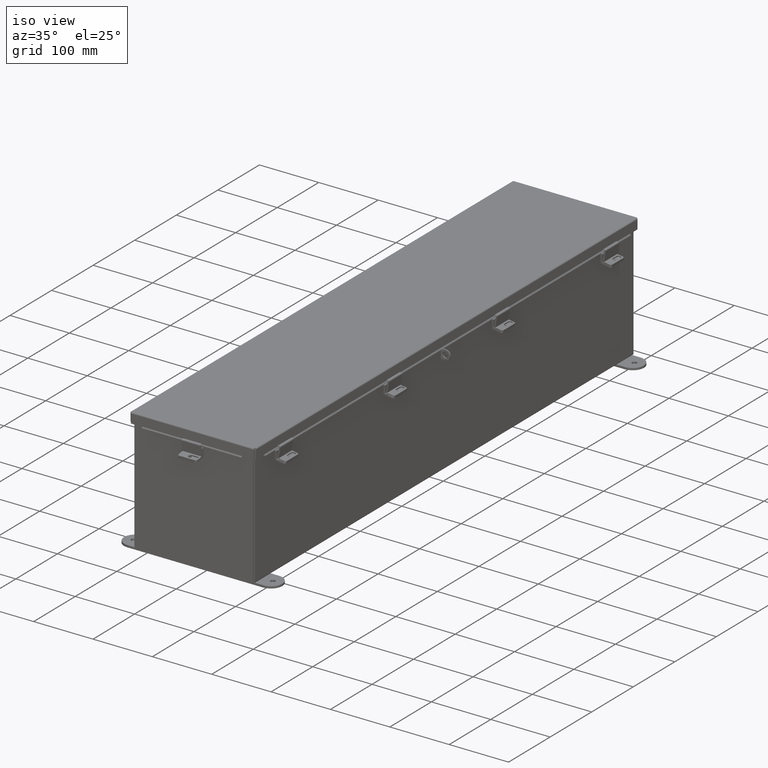
[diagram: clean part render]
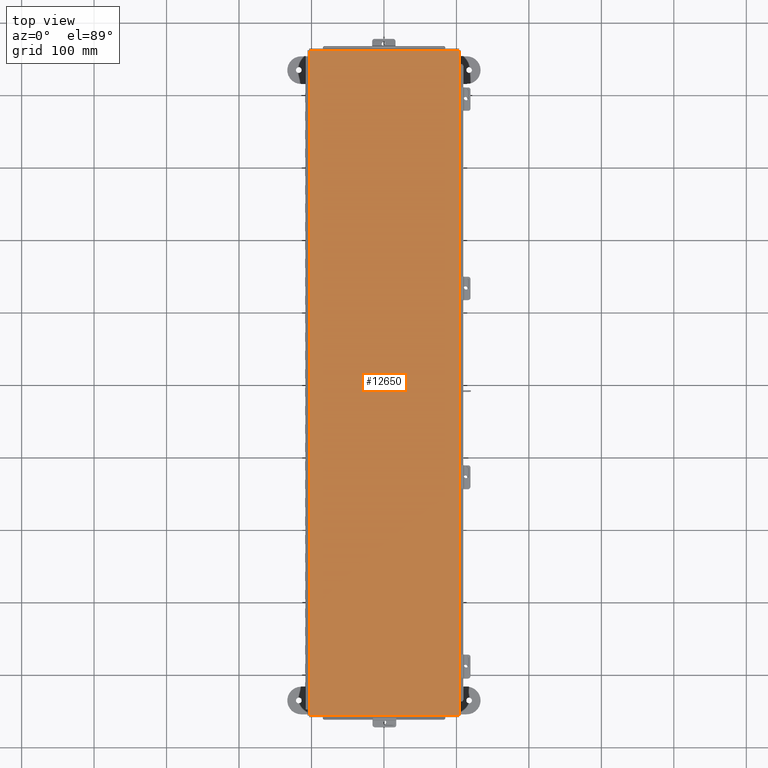
[diagram: tour spotlight — one face highlighted and labeled with its STEP entity id]
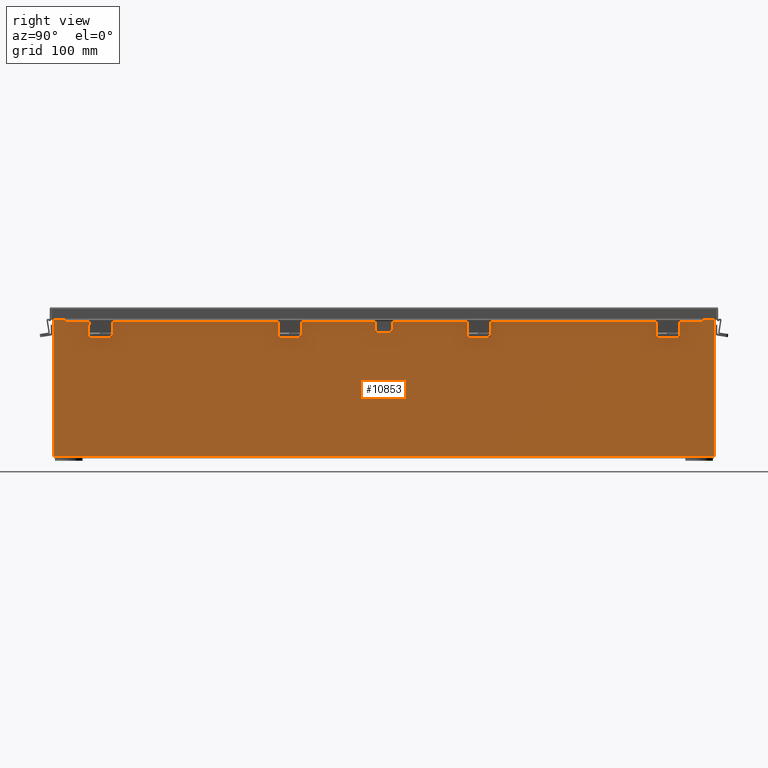
[diagram: tour spotlight — one face highlighted and labeled with its STEP entity id]
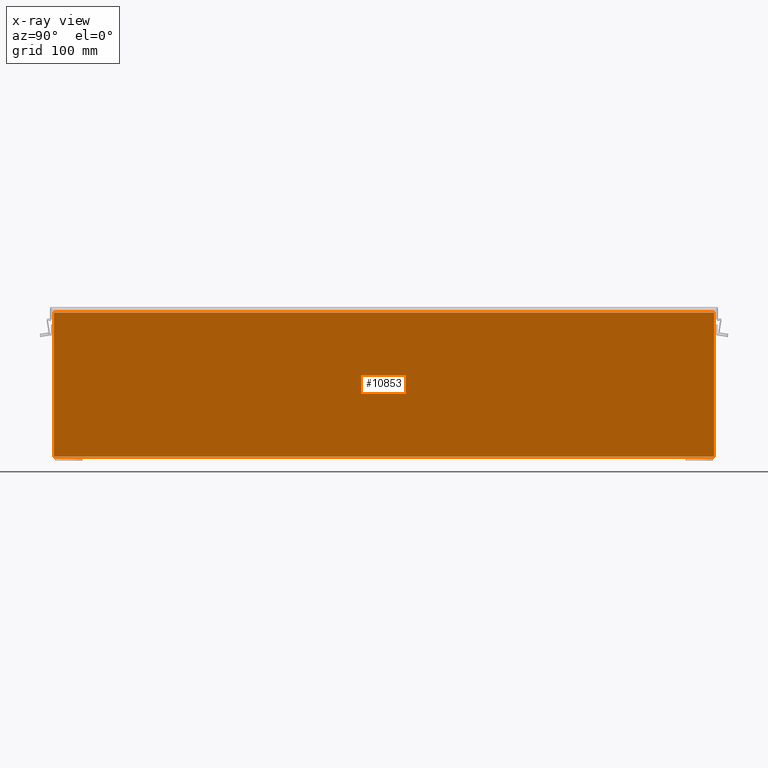
[diagram: x-ray of the same camera — body ghosted, this tour face saturated]
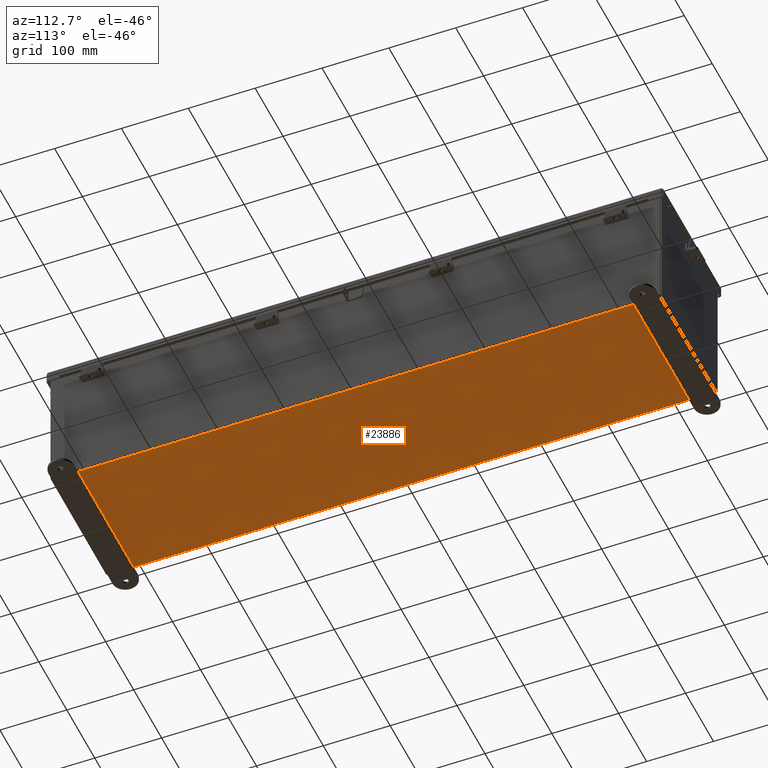
[diagram: tour spotlight — one face highlighted and labeled with its STEP entity id]
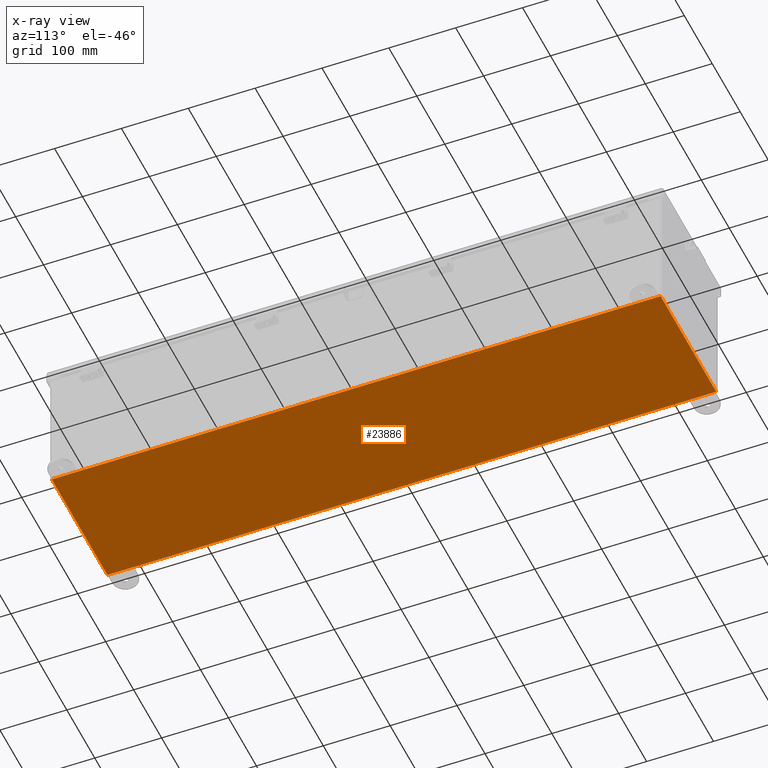
[diagram: x-ray of the same camera — body ghosted, this tour face saturated]
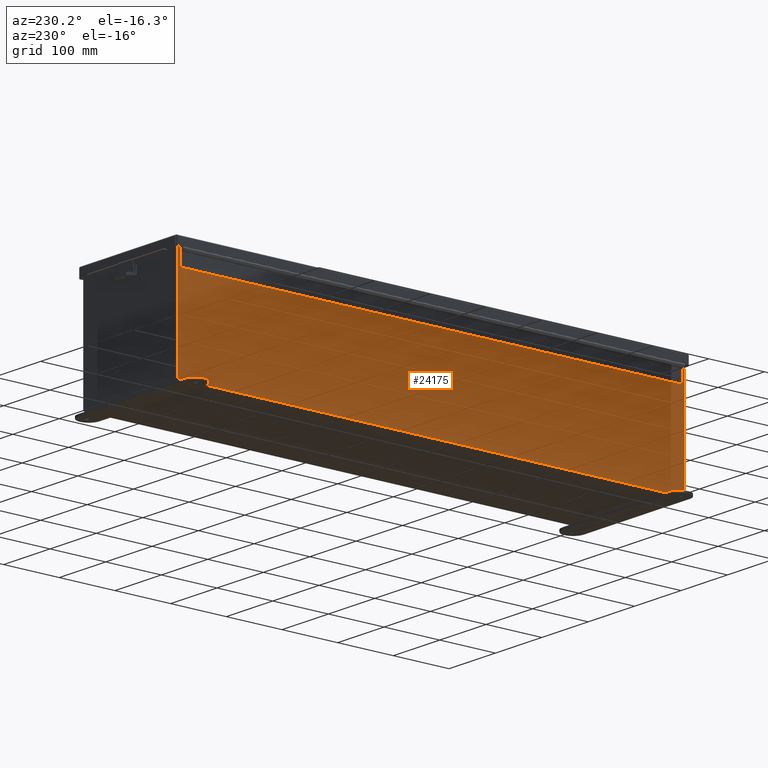
[diagram: tour spotlight — one face highlighted and labeled with its STEP entity id]
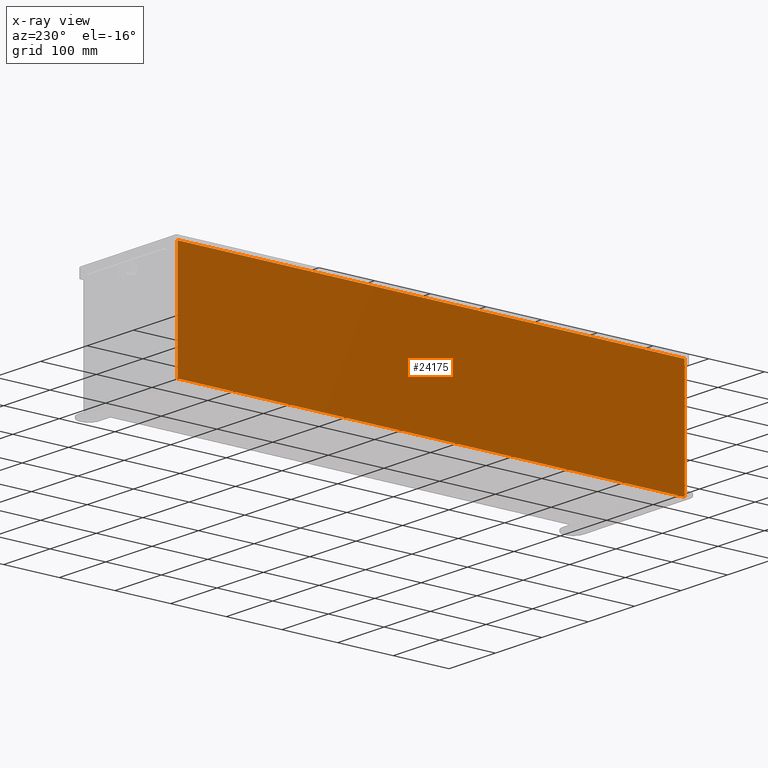
[diagram: x-ray of the same camera — body ghosted, this tour face saturated]
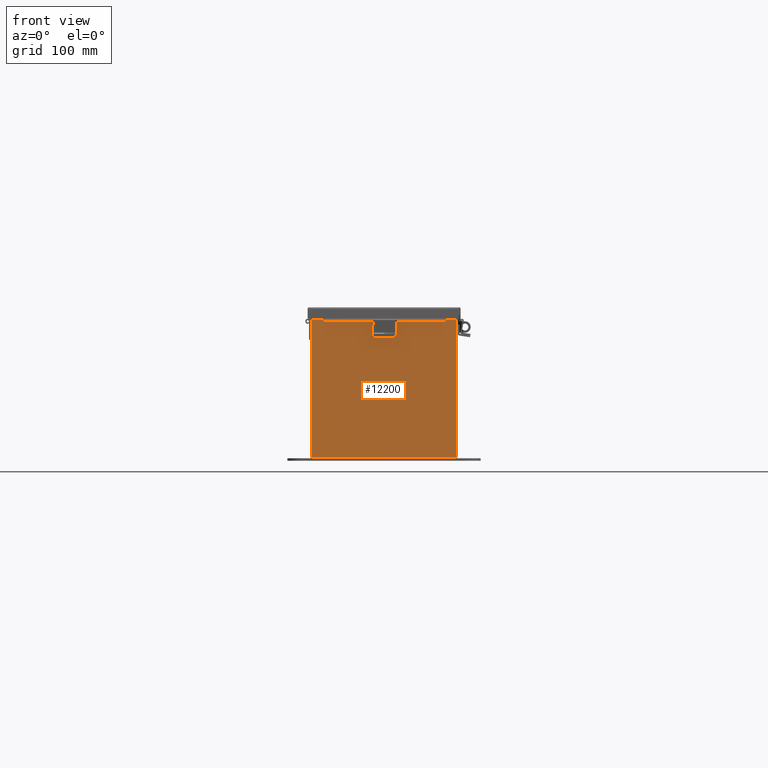
[diagram: tour spotlight — one face highlighted and labeled with its STEP entity id]
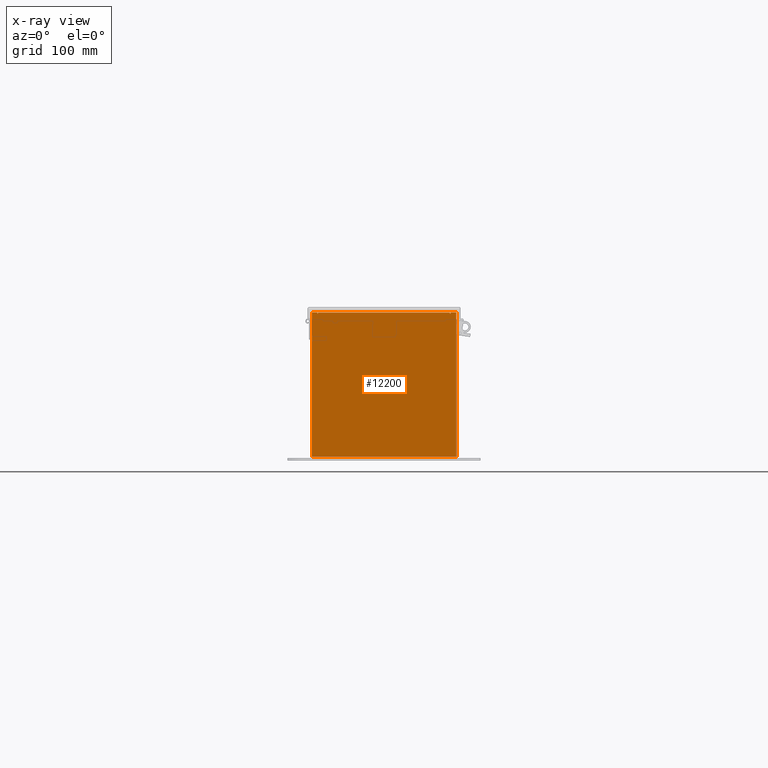
[diagram: x-ray of the same camera — body ghosted, this tour face saturated]
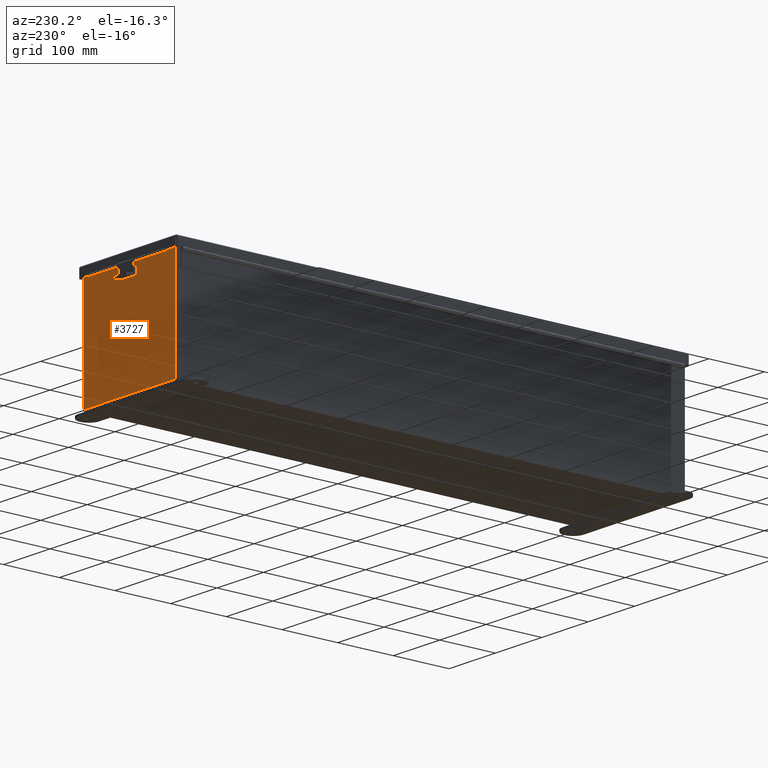
[diagram: tour spotlight — one face highlighted and labeled with its STEP entity id]
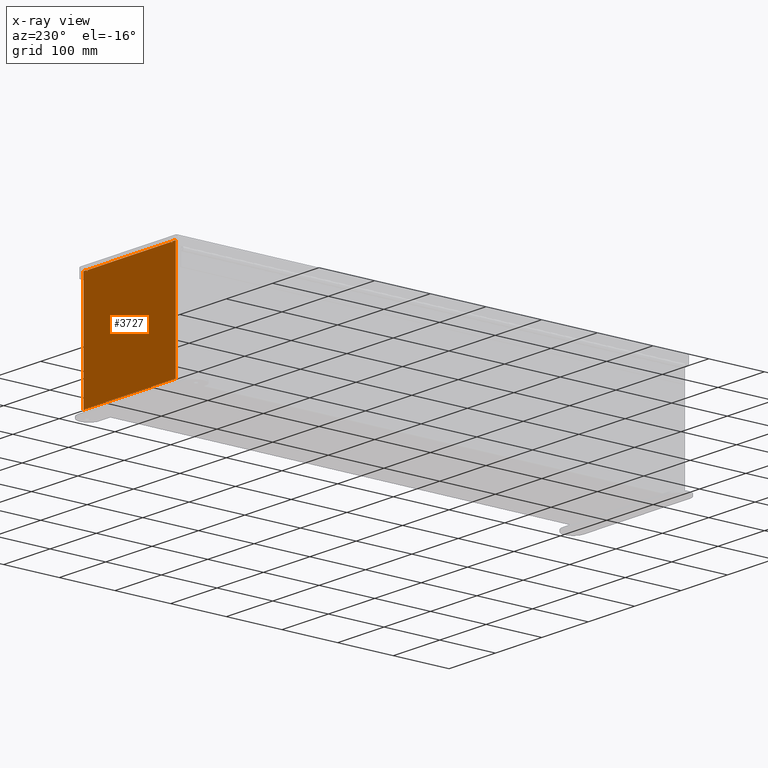
[diagram: x-ray of the same camera — body ghosted, this tour face saturated]
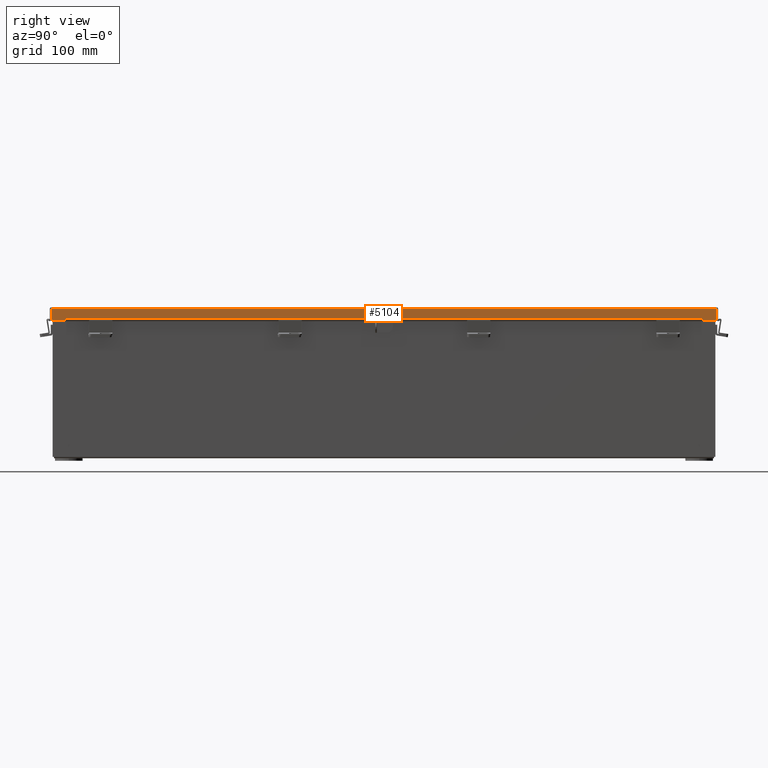
[diagram: tour spotlight — one face highlighted and labeled with its STEP entity id]
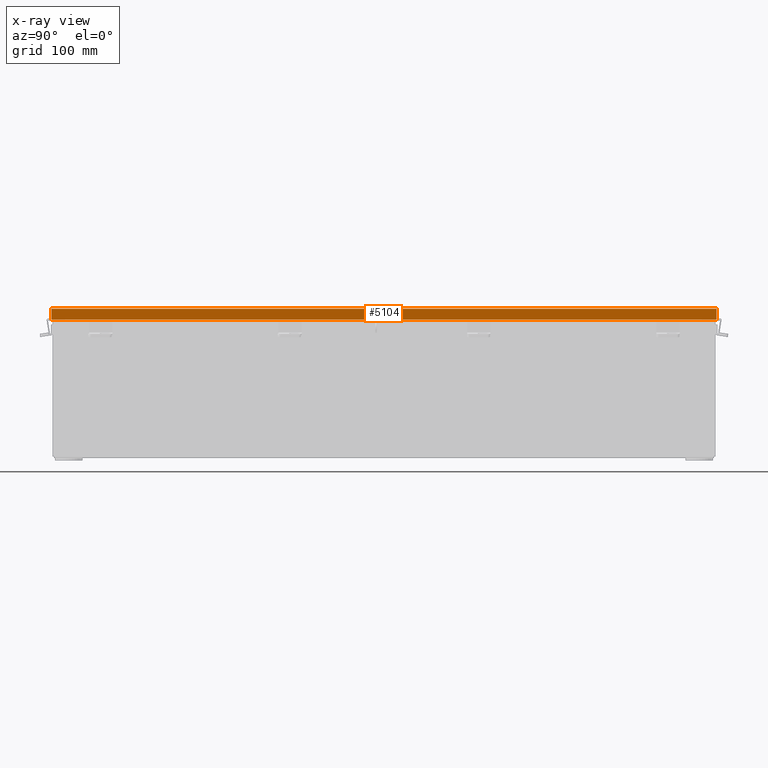
[diagram: x-ray of the same camera — body ghosted, this tour face saturated]
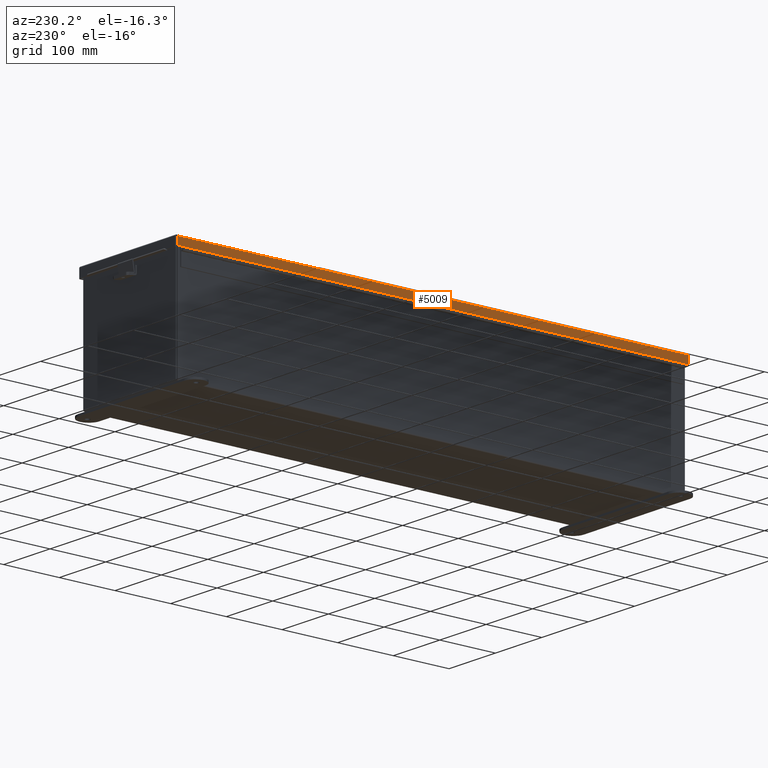
[diagram: tour spotlight — one face highlighted and labeled with its STEP entity id]
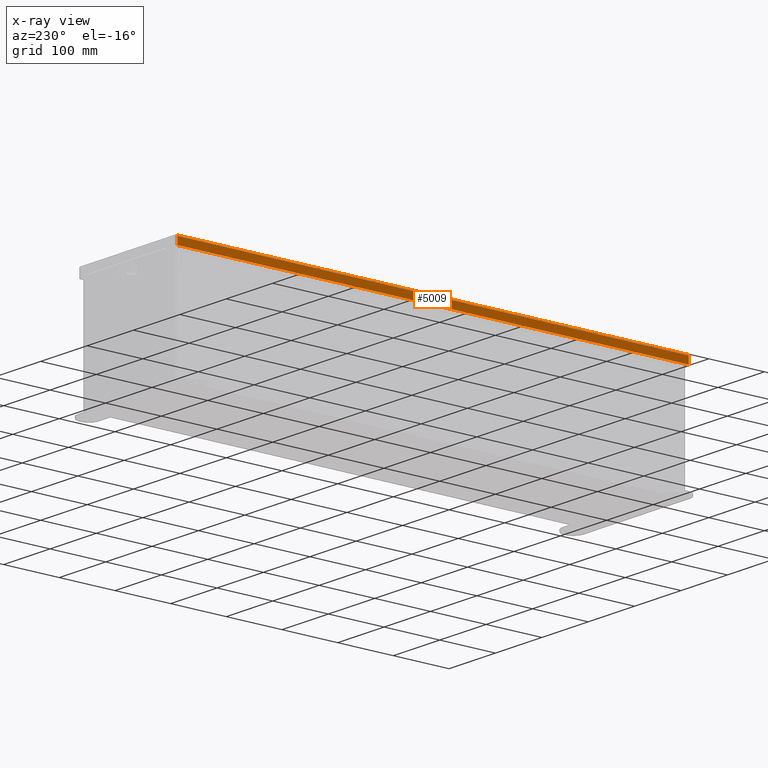
[diagram: x-ray of the same camera — body ghosted, this tour face saturated]
A machine part: a face-by-face anatomy tour. The part has 1148 B-rep faces; the first image is the clean iso view, then the 8 largest visible faces are spotlighted one at a time (largest first), each with its STEP entity span.

Face 1 — top view, entity #12650. In plain terms, the highlighted planar face has unit normal (-0, 0, 1).
Definition (entity closure, byte-faithful):
#63 = CARTESIAN_POINT ( 'NONE',  ( -4.068550000000075600, 18.06855000000003000, -0.07470000000000015500 ) ) ;
#3311 = VECTOR ( 'NONE', #27659, 39.37007874015748100 ) ;
#3503 = DIRECTION ( 'NONE',  ( -1.000000000000000000, -9.917230119929381800E-030, 0.0000000000000000000 ) ) ;
#3534 = DIRECTION ( 'NONE',  ( 1.134380693805408700E-058, -1.143848312570452300E-029, -1.000000000000000000 ) ) ;
#3559 = CARTESIAN_POINT ( 'NONE',  ( -1.173840934777613000E-017, 0.0000000000000000000, -0.07470000000000015500 ) ) ;
#3642 = PLANE ( 'NONE',  #4316 ) ;
#4316 = AXIS2_PLACEMENT_3D ( 'NONE', #3559, #3534, #3503 ) ;
#4500 = ORIENTED_EDGE ( 'NONE', *, *, #9123, .T. ) ;
#5877 = VECTOR ( 'NONE', #24828, 39.37007874015748100 ) ;
#6010 = FACE_OUTER_BOUND ( 'NONE', #15563, .T. ) ;
#7296 = ORIENTED_EDGE ( 'NONE', *, *, #9029, .T. ) ;
#9029 = EDGE_CURVE ( 'NONE', #24326, #19984, #27328, .T. ) ;
#9035 = EDGE_CURVE ( 'NONE', #19984, #17274, #21422, .T. ) ;
#9123 = EDGE_CURVE ( 'NONE', #17274, #27060, #14129, .T. ) ;
#9166 = EDGE_CURVE ( 'NONE', #27060, #24326, #12105, .T. ) ;
#12105 = LINE ( 'NONE', #25009, #5877 ) ;
#12650 = ADVANCED_FACE ( 'NONE', ( #6010 ), #3642, .T. ) ;
#13464 = VECTOR ( 'NONE', #25648, 39.37007874015748100 ) ;
#14129 = LINE ( 'NONE', #26167, #13464 ) ;
#15507 = VECTOR ( 'NONE', #27406, 39.37007874015748100 ) ;
#15563 = EDGE_LOOP ( 'NONE', ( #7296, #19280, #4500, #28083 ) ) ;
#15665 = CARTESIAN_POINT ( 'NONE',  ( -4.068550000000080900, -18.06854999999997300, -0.07469999999999907300 ) ) ;
#17274 = VERTEX_POINT ( 'NONE', #28806 ) ;
#18905 = CARTESIAN_POINT ( 'NONE',  ( 4.068550000000051600, 18.06855000000003000, -0.07470000000000125200 ) ) ;
#19280 = ORIENTED_EDGE ( 'NONE', *, *, #9035, .T. ) ;
#19984 = VERTEX_POINT ( 'NONE', #18905 ) ;
#21422 = LINE ( 'NONE', #27307, #3311 ) ;
#24326 = VERTEX_POINT ( 'NONE', #63 ) ;
#24828 = DIRECTION ( 'NONE',  ( 9.522799667319088900E-030, 1.000000000000000000, 1.148778693228098400E-029 ) ) ;
#25009 = CARTESIAN_POINT ( 'NONE',  ( -4.068550000000075600, -18.07447893218810400, -0.07469999999999907300 ) ) ;
#25648 = DIRECTION ( 'NONE',  ( -1.000000000000000000, -9.917230119929380400E-030, -0.0000000000000000000 ) ) ;
#26167 = CARTESIAN_POINT ( 'NONE',  ( 4.074478932188180900, -18.06854999999997000, -0.07470000000000015500 ) ) ;
#27060 = VERTEX_POINT ( 'NONE', #15665 ) ;
#27307 = CARTESIAN_POINT ( 'NONE',  ( 4.068550000000051600, 18.07447893218816800, -0.07470000000000125200 ) ) ;
#27328 = LINE ( 'NONE', #27441, #15507 ) ;
#27406 = DIRECTION ( 'NONE',  ( 1.000000000000000000, 9.917230119929380400E-030, -0.0000000000000000000 ) ) ;
#27441 = CARTESIAN_POINT ( 'NONE',  ( -4.074478932188211100, 18.06855000000003000, -0.07470000000000015500 ) ) ;
#27659 = DIRECTION ( 'NONE',  ( -9.522799667319088900E-030, -1.000000000000000000, -1.148778693228098400E-029 ) ) ;
#28083 = ORIENTED_EDGE ( 'NONE', *, *, #9166, .T. ) ;
#28806 = CARTESIAN_POINT ( 'NONE',  ( 4.068550000000046300, -18.06854999999997000, -0.07470000000000015500 ) ) ;

Face 2 — right view, entity #10853. An x-ray twin of the same camera follows (body ghosted, this face saturated) — the face is partly hidden behind the body. In plain terms, the highlighted planar face has unit normal (-1, 0, 0).
Definition (entity closure, byte-faithful):
#614 = VERTEX_POINT ( 'NONE', #29240 ) ;
#3409 = DIRECTION ( 'NONE',  ( -1.000000000000000000, 0.0000000000000000000, 3.479795166820705900E-015 ) ) ;
#3469 = DIRECTION ( 'NONE',  ( 3.479795166820705900E-015, 0.0000000000000000000, 1.000000000000000000 ) ) ;
#3765 = PLANE ( 'NONE',  #14485 ) ;
#4406 = CARTESIAN_POINT ( 'NONE',  ( 4.000000000000001800, 0.0000000000000000000, -1.417999849211356600E-014 ) ) ;
#6774 = EDGE_CURVE ( 'NONE', #22476, #614, #25717, .T. ) ;
#7997 = CARTESIAN_POINT ( 'NONE',  ( 4.000000000000001800, -17.92530000000001100, 0.01300000000000011600 ) ) ;
#9175 = LINE ( 'NONE', #28153, #26250 ) ;
#9439 = ORIENTED_EDGE ( 'NONE', *, *, #6774, .T. ) ;
#9864 = CARTESIAN_POINT ( 'NONE',  ( 4.000000000000001800, 17.92529999999999300, -1.417999849211356600E-014 ) ) ;
#10853 = ADVANCED_FACE ( 'NONE', ( #11285 ), #3765, .F. ) ;
#11285 = FACE_OUTER_BOUND ( 'NONE', #24577, .T. ) ;
#13973 = VECTOR ( 'NONE', #15496, 39.37007874015748100 ) ;
#14266 = CARTESIAN_POINT ( 'NONE',  ( 4.000000000000029300, 17.92529999999999300, 7.837599999999999200 ) ) ;
#14418 = EDGE_CURVE ( 'NONE', #16342, #28943, #15885, .T. ) ;
#14485 = AXIS2_PLACEMENT_3D ( 'NONE', #4406, #3409, #3469 ) ;
#15496 = DIRECTION ( 'NONE',  ( 3.479795166820706300E-015, 0.0000000000000000000, 1.000000000000000000 ) ) ;
#15885 = LINE ( 'NONE', #27037, #27712 ) ;
#16342 = VERTEX_POINT ( 'NONE', #24711 ) ;
#19035 = ORIENTED_EDGE ( 'NONE', *, *, #20902, .F. ) ;
#19149 = DIRECTION ( 'NONE',  ( -5.303270486319196900E-032, -1.000000000000000000, -1.524018004532289100E-017 ) ) ;
#20902 = EDGE_CURVE ( 'NONE', #22476, #28943, #9175, .T. ) ;
#22476 = VERTEX_POINT ( 'NONE', #26485 ) ;
#23278 = DIRECTION ( 'NONE',  ( -0.0000000000000000000, -1.000000000000000000, -0.0000000000000000000 ) ) ;
#24400 = VECTOR ( 'NONE', #23278, 39.37007874015748100 ) ;
#24577 = EDGE_LOOP ( 'NONE', ( #28162, #25015, #19035, #9439 ) ) ;
#24711 = CARTESIAN_POINT ( 'NONE',  ( 4.000000000000029300, -17.92530000000001100, 7.837599999999999200 ) ) ;
#25015 = ORIENTED_EDGE ( 'NONE', *, *, #14418, .T. ) ;
#25071 = LINE ( 'NONE', #14266, #24400 ) ;
#25348 = EDGE_CURVE ( 'NONE', #614, #16342, #25071, .T. ) ;
#25717 = LINE ( 'NONE', #9864, #13973 ) ;
#26250 = VECTOR ( 'NONE', #19149, 39.37007874015748100 ) ;
#26485 = CARTESIAN_POINT ( 'NONE',  ( 4.000000000000001800, 17.92529999999999300, 0.01300000000000039000 ) ) ;
#27037 = CARTESIAN_POINT ( 'NONE',  ( 4.000000000000001800, -17.92530000000001100, -1.417999849211356600E-014 ) ) ;
#27712 = VECTOR ( 'NONE', #29345, 39.37007874015748100 ) ;
#28153 = CARTESIAN_POINT ( 'NONE',  ( 4.000000000000001800, -17.92530000000001100, 0.01299999999999984300 ) ) ;
#28162 = ORIENTED_EDGE ( 'NONE', *, *, #25348, .T. ) ;
#28943 = VERTEX_POINT ( 'NONE', #7997 ) ;
#29240 = CARTESIAN_POINT ( 'NONE',  ( 4.000000000000029300, 17.92529999999998200, 7.837599999999999200 ) ) ;
#29345 = DIRECTION ( 'NONE',  ( -3.479795166820706300E-015, 0.0000000000000000000, -1.000000000000000000 ) ) ;

Face 3 — auxiliary view, entity #23886. An x-ray twin of the same camera follows (body ghosted, this face saturated) — the face is partly hidden behind the body. In plain terms, the highlighted planar face has unit normal (0, 0, -1).
Definition (entity closure, byte-faithful):
#575 = VERTEX_POINT ( 'NONE', #28448 ) ;
#2944 = DIRECTION ( 'NONE',  ( 0.0000000000000000000, 0.0000000000000000000, -1.000000000000000000 ) ) ;
#4392 = LINE ( 'NONE', #28704, #15837 ) ;
#4433 = VERTEX_POINT ( 'NONE', #23640 ) ;
#4452 = LINE ( 'NONE', #24788, #28453 ) ;
#4563 = CARTESIAN_POINT ( 'NONE',  ( 3.912300000000001900, -17.92530000000001100, -0.07470000000000000300 ) ) ;
#4710 = ORIENTED_EDGE ( 'NONE', *, *, #13146, .F. ) ;
#5364 = ORIENTED_EDGE ( 'NONE', *, *, #5366, .F. ) ;
#5366 = EDGE_CURVE ( 'NONE', #575, #18986, #4392, .T. ) ;
#5639 = EDGE_LOOP ( 'NONE', ( #4710, #10724, #5364, #16689 ) ) ;
#8507 = EDGE_CURVE ( 'NONE', #4433, #18986, #4452, .T. ) ;
#8789 = CARTESIAN_POINT ( 'NONE',  ( -3.912299999999997400, -17.92530000000001100, -0.07470000000000022500 ) ) ;
#9897 = CARTESIAN_POINT ( 'NONE',  ( 0.0000000000000000000, 0.0000000000000000000, -0.07470000000000000300 ) ) ;
#10018 = VECTOR ( 'NONE', #29045, 39.37007874015748100 ) ;
#10724 = ORIENTED_EDGE ( 'NONE', *, *, #8507, .T. ) ;
#12893 = VECTOR ( 'NONE', #15987, 39.37007874015748100 ) ;
#13146 = EDGE_CURVE ( 'NONE', #4433, #20495, #17996, .T. ) ;
#15837 = VECTOR ( 'NONE', #28800, 39.37007874015748100 ) ;
#15987 = DIRECTION ( 'NONE',  ( -1.000000000000000000, -0.0000000000000000000, -0.0000000000000000000 ) ) ;
#16171 = CARTESIAN_POINT ( 'NONE',  ( -3.999999999999997800, 17.92529999999999300, -0.07470000000000000300 ) ) ;
#16622 = PLANE ( 'NONE',  #22703 ) ;
#16689 = ORIENTED_EDGE ( 'NONE', *, *, #27045, .T. ) ;
#17758 = FACE_OUTER_BOUND ( 'NONE', #5639, .T. ) ;
#17996 = LINE ( 'NONE', #16171, #12893 ) ;
#18849 = DIRECTION ( 'NONE',  ( -1.000000000000000000, 0.0000000000000000000, -0.0000000000000000000 ) ) ;
#18986 = VERTEX_POINT ( 'NONE', #4563 ) ;
#20495 = VERTEX_POINT ( 'NONE', #29279 ) ;
#22703 = AXIS2_PLACEMENT_3D ( 'NONE', #9897, #2944, #18849 ) ;
#23640 = CARTESIAN_POINT ( 'NONE',  ( 3.912300000000001900, 17.92529999999999300, -0.07469999999999966900 ) ) ;
#23886 = ADVANCED_FACE ( 'NONE', ( #17758 ), #16622, .T. ) ;
#24788 = CARTESIAN_POINT ( 'NONE',  ( 3.912300000000001900, 17.92529999999999300, -0.07469999999999966900 ) ) ;
#25575 = DIRECTION ( 'NONE',  ( -0.0000000000000000000, -1.000000000000000000, -0.0000000000000000000 ) ) ;
#27045 = EDGE_CURVE ( 'NONE', #575, #20495, #27803, .T. ) ;
#27803 = LINE ( 'NONE', #8789, #10018 ) ;
#28448 = CARTESIAN_POINT ( 'NONE',  ( -3.912299999999997400, -17.92530000000001100, -0.07470000000000022500 ) ) ;
#28453 = VECTOR ( 'NONE', #25575, 39.37007874015748100 ) ;
#28704 = CARTESIAN_POINT ( 'NONE',  ( -3.999999999999997800, -17.92530000000001100, -0.07470000000000000300 ) ) ;
#28800 = DIRECTION ( 'NONE',  ( 1.000000000000000000, 0.0000000000000000000, 0.0000000000000000000 ) ) ;
#29045 = DIRECTION ( 'NONE',  ( -0.0000000000000000000, 1.000000000000000000, -0.0000000000000000000 ) ) ;
#29279 = CARTESIAN_POINT ( 'NONE',  ( -3.912299999999997400, 17.92529999999999300, -0.07470000000000000300 ) ) ;

Face 4 — auxiliary view, entity #24175. An x-ray twin of the same camera follows (body ghosted, this face saturated) — the face is partly hidden behind the body. In plain terms, the highlighted planar face has unit normal (1, 0, 0).
Definition (entity closure, byte-faithful):
#67 = EDGE_CURVE ( 'NONE', #23050, #22498, #25702, .T. ) ;
#195 = AXIS2_PLACEMENT_3D ( 'NONE', #1614, #19819, #6310 ) ;
#280 = ORIENTED_EDGE ( 'NONE', *, *, #18450, .T. ) ;
#1047 = CARTESIAN_POINT ( 'NONE',  ( -4.000000000000025800, -17.92530000000001100, 7.837599999999999200 ) ) ;
#1614 = CARTESIAN_POINT ( 'NONE',  ( -3.999999999999997800, 0.0000000000000000000, -1.417999849211356600E-014 ) ) ;
#3357 = VERTEX_POINT ( 'NONE', #28469 ) ;
#3571 = CARTESIAN_POINT ( 'NONE',  ( -4.000000000000025800, -17.92529999999999600, 7.837599999999999200 ) ) ;
#6310 = DIRECTION ( 'NONE',  ( 3.479795166820705900E-015, 0.0000000000000000000, -1.000000000000000000 ) ) ;
#6623 = CARTESIAN_POINT ( 'NONE',  ( -3.999999999999997800, 17.92529999999999300, 0.01299999999999984300 ) ) ;
#7134 = VECTOR ( 'NONE', #24599, 39.37007874015748100 ) ;
#7261 = DIRECTION ( 'NONE',  ( 3.479795166820706300E-015, 0.0000000000000000000, -1.000000000000000000 ) ) ;
#7279 = ORIENTED_EDGE ( 'NONE', *, *, #11077, .T. ) ;
#11077 = EDGE_CURVE ( 'NONE', #3357, #23050, #14028, .T. ) ;
#13930 = LINE ( 'NONE', #6623, #7134 ) ;
#13956 = VECTOR ( 'NONE', #19990, 39.37007874015748100 ) ;
#14028 = LINE ( 'NONE', #26246, #19920 ) ;
#16417 = FACE_OUTER_BOUND ( 'NONE', #26274, .T. ) ;
#17449 = VECTOR ( 'NONE', #7261, 39.37007874015748100 ) ;
#18450 = EDGE_CURVE ( 'NONE', #22498, #22824, #24796, .T. ) ;
#18875 = CARTESIAN_POINT ( 'NONE',  ( -3.999999999999997800, 17.92529999999999300, 0.01299999999999956900 ) ) ;
#19819 = DIRECTION ( 'NONE',  ( 1.000000000000000000, 0.0000000000000000000, 3.479795166820705900E-015 ) ) ;
#19920 = VECTOR ( 'NONE', #26217, 39.37007874015748100 ) ;
#19990 = DIRECTION ( 'NONE',  ( 0.0000000000000000000, 1.000000000000000000, 0.0000000000000000000 ) ) ;
#20380 = ORIENTED_EDGE ( 'NONE', *, *, #67, .T. ) ;
#22225 = CARTESIAN_POINT ( 'NONE',  ( -4.000000000000024900, 17.92529999999999300, 7.837599999999999200 ) ) ;
#22498 = VERTEX_POINT ( 'NONE', #22225 ) ;
#22824 = VERTEX_POINT ( 'NONE', #18875 ) ;
#23050 = VERTEX_POINT ( 'NONE', #3571 ) ;
#23054 = CARTESIAN_POINT ( 'NONE',  ( -3.999999999999997800, 17.92529999999999300, -1.417999849211356600E-014 ) ) ;
#24175 = ADVANCED_FACE ( 'NONE', ( #16417 ), #26429, .F. ) ;
#24599 = DIRECTION ( 'NONE',  ( -5.303270486319196900E-032, 1.000000000000000000, 1.524018004532289100E-017 ) ) ;
#24796 = LINE ( 'NONE', #23054, #17449 ) ;
#25658 = ORIENTED_EDGE ( 'NONE', *, *, #26479, .F. ) ;
#25702 = LINE ( 'NONE', #1047, #13956 ) ;
#26217 = DIRECTION ( 'NONE',  ( -3.479795166820706300E-015, 2.783836133456565100E-016, 1.000000000000000000 ) ) ;
#26246 = CARTESIAN_POINT ( 'NONE',  ( -3.999999999999997800, -17.92530000000001100, -9.185838878696085100E-015 ) ) ;
#26274 = EDGE_LOOP ( 'NONE', ( #20380, #280, #25658, #7279 ) ) ;
#26429 = PLANE ( 'NONE',  #195 ) ;
#26479 = EDGE_CURVE ( 'NONE', #3357, #22824, #13930, .T. ) ;
#28469 = CARTESIAN_POINT ( 'NONE',  ( -3.999999999999997800, -17.92530000000001100, 0.01299999999999929700 ) ) ;

Face 5 — front view, entity #12200. An x-ray twin of the same camera follows (body ghosted, this face saturated) — the face is partly hidden behind the body. In plain terms, the highlighted planar face has unit normal (-0, 1, -0).
Definition (entity closure, byte-faithful):
#19 = ORIENTED_EDGE ( 'NONE', *, *, #28036, .T. ) ;
#303 = LINE ( 'NONE', #19450, #23806 ) ;
#324 = VECTOR ( 'NONE', #5975, 39.37007874015748100 ) ;
#1184 = CARTESIAN_POINT ( 'NONE',  ( 3.925299999999989400, 0.0000000000000000000, -3.925299999999999600 ) ) ;
#1273 = VECTOR ( 'NONE', #11764, 39.37007874015748100 ) ;
#1574 = DIRECTION ( 'NONE',  ( 0.0000000000000000000, 0.0000000000000000000, 1.000000000000000000 ) ) ;
#1708 = EDGE_CURVE ( 'NONE', #14404, #18955, #7215, .T. ) ;
#2020 = CARTESIAN_POINT ( 'NONE',  ( -3.582299999999994300, 0.0000000000000000000, 3.874949999999995700 ) ) ;
#2271 = EDGE_CURVE ( 'NONE', #11490, #17614, #19480, .T. ) ;
#2345 = AXIS2_PLACEMENT_3D ( 'NONE', #9831, #9822, #9727 ) ;
#2366 = CARTESIAN_POINT ( 'NONE',  ( 3.600975000000005400, 0.0000000000000000000, 3.874950000000000100 ) ) ;
#3084 = EDGE_CURVE ( 'NONE', #17614, #12219, #20488, .T. ) ;
#3198 = CARTESIAN_POINT ( 'NONE',  ( -3.582300000000009800, 0.0000000000000000000, 0.0000000000000000000 ) ) ;
#3695 = VERTEX_POINT ( 'NONE', #24609 ) ;
#4024 = DIRECTION ( 'NONE',  ( 0.0000000000000000000, 0.0000000000000000000, -1.000000000000000000 ) ) ;
#4085 = CARTESIAN_POINT ( 'NONE',  ( -3.925300000000010200, 0.0000000000000000000, -3.925299999999999600 ) ) ;
#4726 = DIRECTION ( 'NONE',  ( 0.0000000000000000000, 0.0000000000000000000, -1.000000000000000000 ) ) ;
#4845 = DIRECTION ( 'NONE',  ( 0.0000000000000000000, 0.0000000000000000000, -1.000000000000000000 ) ) ;
#4881 = DIRECTION ( 'NONE',  ( 1.785228582942390700E-030, 1.000000000000000000, -0.0000000000000000000 ) ) ;
#4910 = CARTESIAN_POINT ( 'NONE',  ( -3.600974999999994300, 0.0000000000000000000, 3.874949999999995700 ) ) ;
#5823 = VECTOR ( 'NONE', #7014, 39.37007874015748100 ) ;
#5975 = DIRECTION ( 'NONE',  ( 0.0000000000000000000, 0.0000000000000000000, -1.000000000000000000 ) ) ;
#6266 = ORIENTED_EDGE ( 'NONE', *, *, #25034, .F. ) ;
#6352 = CARTESIAN_POINT ( 'NONE',  ( 3.925299999999989400, 0.0000000000000000000, 3.925300000000000500 ) ) ;
#6402 = EDGE_CURVE ( 'NONE', #18955, #3695, #15753, .T. ) ;
#6591 = LINE ( 'NONE', #6352, #324 ) ;
#6979 = CARTESIAN_POINT ( 'NONE',  ( -3.925300000000010200, 0.0000000000000000000, 3.925299999999998200 ) ) ;
#6995 = EDGE_CURVE ( 'NONE', #24062, #11490, #19465, .T. ) ;
#7014 = DIRECTION ( 'NONE',  ( 1.000000000000000000, 1.785228582942390700E-030, 0.0000000000000000000 ) ) ;
#7215 = LINE ( 'NONE', #3198, #13343 ) ;
#7309 = VECTOR ( 'NONE', #17789, 39.37007874015748100 ) ;
#9306 = VECTOR ( 'NONE', #13248, 39.37007874015748100 ) ;
#9331 = FACE_OUTER_BOUND ( 'NONE', #25272, .T. ) ;
#9336 = VERTEX_POINT ( 'NONE', #21701 ) ;
#9541 = EDGE_CURVE ( 'NONE', #3695, #12219, #24523, .T. ) ;
#9552 = DIRECTION ( 'NONE',  ( 1.000000000000000000, 1.785228582942390700E-030, -0.0000000000000000000 ) ) ;
#9693 = CARTESIAN_POINT ( 'NONE',  ( -3.619650000000010200, 0.0000000000000000000, 3.925300000000000500 ) ) ;
#9727 = DIRECTION ( 'NONE',  ( 0.0000000000000000000, 0.0000000000000000000, -1.000000000000000000 ) ) ;
#9749 = CARTESIAN_POINT ( 'NONE',  ( -3.925300000000010200, 0.0000000000000000000, 3.925299999999998200 ) ) ;
#9822 = DIRECTION ( 'NONE',  ( -1.785228582942390700E-030, -1.000000000000000000, -0.0000000000000000000 ) ) ;
#9831 = CARTESIAN_POINT ( 'NONE',  ( 0.0000000000000000000, 0.0000000000000000000, 0.0000000000000000000 ) ) ;
#10092 = EDGE_CURVE ( 'NONE', #9336, #24062, #6591, .T. ) ;
#10200 = PLANE ( 'NONE',  #2345 ) ;
#11091 = CARTESIAN_POINT ( 'NONE',  ( -3.925300000000010200, 0.0000000000000000000, 3.925299999999998200 ) ) ;
#11094 = VECTOR ( 'NONE', #9552, 39.37007874015748100 ) ;
#11266 = DIRECTION ( 'NONE',  ( 0.0000000000000000000, 0.0000000000000000000, 1.000000000000000000 ) ) ;
#11438 = ORIENTED_EDGE ( 'NONE', *, *, #21897, .T. ) ;
#11490 = VERTEX_POINT ( 'NONE', #20895 ) ;
#11764 = DIRECTION ( 'NONE',  ( -1.000000000000000000, -1.785228582942390700E-030, 0.0000000000000000000 ) ) ;
#11835 = LINE ( 'NONE', #25137, #11094 ) ;
#12109 = ORIENTED_EDGE ( 'NONE', *, *, #20566, .F. ) ;
#12200 = ADVANCED_FACE ( 'NONE', ( #9331 ), #10200, .F. ) ;
#12219 = VERTEX_POINT ( 'NONE', #9693 ) ;
#12760 = AXIS2_PLACEMENT_3D ( 'NONE', #4910, #4881, #4845 ) ;
#13248 = DIRECTION ( 'NONE',  ( 1.000000000000000000, 1.785228582942390700E-030, 0.0000000000000000000 ) ) ;
#13343 = VECTOR ( 'NONE', #4024, 39.37007874015748100 ) ;
#13945 = ORIENTED_EDGE ( 'NONE', *, *, #2271, .T. ) ;
#14404 = VERTEX_POINT ( 'NONE', #24813 ) ;
#15202 = ORIENTED_EDGE ( 'NONE', *, *, #3084, .T. ) ;
#15753 = CIRCLE ( 'NONE', #12760, 0.01867500000000003900 ) ;
#15899 = ORIENTED_EDGE ( 'NONE', *, *, #10092, .T. ) ;
#16087 = EDGE_CURVE ( 'NONE', #19916, #16791, #303, .T. ) ;
#16323 = ORIENTED_EDGE ( 'NONE', *, *, #1708, .F. ) ;
#16791 = VERTEX_POINT ( 'NONE', #18067 ) ;
#17614 = VERTEX_POINT ( 'NONE', #9749 ) ;
#17789 = DIRECTION ( 'NONE',  ( 0.0000000000000000000, 0.0000000000000000000, 1.000000000000000000 ) ) ;
#17796 = CARTESIAN_POINT ( 'NONE',  ( -3.619650000000010200, 0.0000000000000000000, 0.0000000000000000000 ) ) ;
#17919 = CARTESIAN_POINT ( 'NONE',  ( 3.582299999999989400, 0.0000000000000000000, 1.584471836325272700E-014 ) ) ;
#18067 = CARTESIAN_POINT ( 'NONE',  ( 3.619650000000005400, 0.0000000000000000000, 3.874950000000000100 ) ) ;
#18232 = CARTESIAN_POINT ( 'NONE',  ( -3.925300000000010200, 0.0000000000000000000, 3.925299999999998200 ) ) ;
#18307 = DIRECTION ( 'NONE',  ( 1.785228582942390700E-030, 1.000000000000000000, -0.0000000000000000000 ) ) ;
#18625 = ORIENTED_EDGE ( 'NONE', *, *, #16087, .F. ) ;
#18802 = VECTOR ( 'NONE', #1574, 39.37007874015748100 ) ;
#18955 = VERTEX_POINT ( 'NONE', #2020 ) ;
#19450 = CARTESIAN_POINT ( 'NONE',  ( 3.619649999999905000, 0.0000000000000000000, -7.867722221753078700E-014 ) ) ;
#19465 = LINE ( 'NONE', #4085, #1273 ) ;
#19480 = LINE ( 'NONE', #6979, #24028 ) ;
#19504 = LINE ( 'NONE', #17919, #18802 ) ;
#19916 = VERTEX_POINT ( 'NONE', #23197 ) ;
#20416 = AXIS2_PLACEMENT_3D ( 'NONE', #2366, #18307, #4726 ) ;
#20488 = LINE ( 'NONE', #11091, #9306 ) ;
#20566 = EDGE_CURVE ( 'NONE', #16791, #29117, #20720, .T. ) ;
#20695 = ORIENTED_EDGE ( 'NONE', *, *, #6402, .F. ) ;
#20720 = CIRCLE ( 'NONE', #20416, 0.01867500000000003900 ) ;
#20895 = CARTESIAN_POINT ( 'NONE',  ( -3.925300000000010200, 0.0000000000000000000, -3.925299999999999600 ) ) ;
#21701 = CARTESIAN_POINT ( 'NONE',  ( 3.925299999999989400, 0.0000000000000000000, 3.925300000000000500 ) ) ;
#21719 = DIRECTION ( 'NONE',  ( -2.170286390199978800E-014, -2.859620781426167800E-030, -1.000000000000000000 ) ) ;
#21897 = EDGE_CURVE ( 'NONE', #19916, #9336, #25173, .T. ) ;
#22426 = ORIENTED_EDGE ( 'NONE', *, *, #9541, .F. ) ;
#23197 = CARTESIAN_POINT ( 'NONE',  ( 3.619649999999990300, 0.0000000000000000000, 3.925300000000001300 ) ) ;
#23806 = VECTOR ( 'NONE', #21719, 39.37007874015748100 ) ;
#24028 = VECTOR ( 'NONE', #11266, 39.37007874015748100 ) ;
#24062 = VERTEX_POINT ( 'NONE', #1184 ) ;
#24523 = LINE ( 'NONE', #17796, #7309 ) ;
#24609 = CARTESIAN_POINT ( 'NONE',  ( -3.619649999999994300, 0.0000000000000000000, 3.874950000000001400 ) ) ;
#24813 = CARTESIAN_POINT ( 'NONE',  ( -3.582300000000009800, 0.0000000000000000000, 3.912299999999997000 ) ) ;
#25034 = EDGE_CURVE ( 'NONE', #29117, #27334, #19504, .T. ) ;
#25137 = CARTESIAN_POINT ( 'NONE',  ( -3.582300000000009800, 0.0000000000000000000, 3.912299999999997000 ) ) ;
#25173 = LINE ( 'NONE', #18232, #5823 ) ;
#25272 = EDGE_LOOP ( 'NONE', ( #22426, #20695, #16323, #19, #6266, #12109, #18625, #11438, #15899, #26393, #13945, #15202 ) ) ;
#26393 = ORIENTED_EDGE ( 'NONE', *, *, #6995, .T. ) ;
#27334 = VERTEX_POINT ( 'NONE', #27513 ) ;
#27513 = CARTESIAN_POINT ( 'NONE',  ( 3.582299999999989400, 0.0000000000000000000, 3.912300000000001400 ) ) ;
#28036 = EDGE_CURVE ( 'NONE', #14404, #27334, #11835, .T. ) ;
#28750 = CARTESIAN_POINT ( 'NONE',  ( 3.582300000000004900, 0.0000000000000000000, 3.874950000000000100 ) ) ;
#29117 = VERTEX_POINT ( 'NONE', #28750 ) ;

Face 6 — auxiliary view, entity #3727. An x-ray twin of the same camera follows (body ghosted, this face saturated) — the face is partly hidden behind the body. In plain terms, the highlighted planar face has unit normal (0, -1, 0).
Definition (entity closure, byte-faithful):
#189 = CIRCLE ( 'NONE', #14005, 0.01867500000000003900 ) ;
#194 = DIRECTION ( 'NONE',  ( 0.0000000000000000000, 0.0000000000000000000, 1.000000000000000000 ) ) ;
#225 = LINE ( 'NONE', #17197, #17777 ) ;
#299 = VERTEX_POINT ( 'NONE', #11239 ) ;
#420 = CARTESIAN_POINT ( 'NONE',  ( 3.582299999999999200, 0.0000000000000000000, 0.0000000000000000000 ) ) ;
#984 = VERTEX_POINT ( 'NONE', #26549 ) ;
#1103 = CARTESIAN_POINT ( 'NONE',  ( 3.925299999999999100, 0.0000000000000000000, 3.925299999999999600 ) ) ;
#1520 = EDGE_CURVE ( 'NONE', #10546, #11109, #12197, .T. ) ;
#1633 = DIRECTION ( 'NONE',  ( -2.170286390199978800E-014, 0.0000000000000000000, -1.000000000000000000 ) ) ;
#2104 = EDGE_CURVE ( 'NONE', #14859, #22983, #189, .T. ) ;
#2532 = CARTESIAN_POINT ( 'NONE',  ( -3.925300000000000500, 0.0000000000000000000, -3.925300000000000500 ) ) ;
#2781 = ORIENTED_EDGE ( 'NONE', *, *, #2104, .F. ) ;
#3550 = DIRECTION ( 'NONE',  ( 1.000000000000000000, 0.0000000000000000000, 0.0000000000000000000 ) ) ;
#3577 = DIRECTION ( 'NONE',  ( 0.0000000000000000000, 0.0000000000000000000, -1.000000000000000000 ) ) ;
#3727 = ADVANCED_FACE ( 'NONE', ( #26319 ), #8931, .F. ) ;
#4255 = VERTEX_POINT ( 'NONE', #5430 ) ;
#4723 = LINE ( 'NONE', #2532, #22051 ) ;
#5171 = DIRECTION ( 'NONE',  ( 0.0000000000000000000, 0.0000000000000000000, 1.000000000000000000 ) ) ;
#5371 = AXIS2_PLACEMENT_3D ( 'NONE', #22742, #11451, #9222 ) ;
#5430 = CARTESIAN_POINT ( 'NONE',  ( -3.582300000000000000, 0.0000000000000000000, 3.874949999999999700 ) ) ;
#5633 = CARTESIAN_POINT ( 'NONE',  ( 3.582299999999999200, 0.0000000000000000000, 3.874949999999999700 ) ) ;
#5847 = CARTESIAN_POINT ( 'NONE',  ( 3.619650000000000500, 0.0000000000000000000, 3.925299999999999600 ) ) ;
#6087 = CARTESIAN_POINT ( 'NONE',  ( 3.619649999999999100, 0.0000000000000000000, 3.874949999999999700 ) ) ;
#6125 = ORIENTED_EDGE ( 'NONE', *, *, #8386, .F. ) ;
#6215 = CARTESIAN_POINT ( 'NONE',  ( -3.600975000000000000, 0.0000000000000000000, 3.874949999999999700 ) ) ;
#6381 = CARTESIAN_POINT ( 'NONE',  ( -3.925300000000000500, 0.0000000000000000000, 3.925299999999999600 ) ) ;
#6538 = ORIENTED_EDGE ( 'NONE', *, *, #16474, .T. ) ;
#6972 = VERTEX_POINT ( 'NONE', #6381 ) ;
#6983 = VECTOR ( 'NONE', #28350, 39.37007874015748100 ) ;
#7823 = CARTESIAN_POINT ( 'NONE',  ( -3.619650000000000500, 0.0000000000000000000, 0.0000000000000000000 ) ) ;
#8139 = VERTEX_POINT ( 'NONE', #5847 ) ;
#8386 = EDGE_CURVE ( 'NONE', #22983, #299, #14180, .T. ) ;
#8572 = DIRECTION ( 'NONE',  ( 0.0000000000000000000, 0.0000000000000000000, -1.000000000000000000 ) ) ;
#8931 = PLANE ( 'NONE',  #5371 ) ;
#9222 = DIRECTION ( 'NONE',  ( 0.0000000000000000000, -0.0000000000000000000, -1.000000000000000000 ) ) ;
#9620 = EDGE_LOOP ( 'NONE', ( #17287, #22138, #25429, #9684, #6125, #2781, #24447, #13149, #16537, #6538, #10244, #27610 ) ) ;
#9684 = ORIENTED_EDGE ( 'NONE', *, *, #11533, .T. ) ;
#9766 = EDGE_CURVE ( 'NONE', #8139, #20524, #12110, .T. ) ;
#9842 = LINE ( 'NONE', #26044, #21004 ) ;
#10244 = ORIENTED_EDGE ( 'NONE', *, *, #10528, .T. ) ;
#10528 = EDGE_CURVE ( 'NONE', #16782, #6972, #9842, .T. ) ;
#10546 = VERTEX_POINT ( 'NONE', #21236 ) ;
#10855 = DIRECTION ( 'NONE',  ( -0.0000000000000000000, 1.000000000000000000, -0.0000000000000000000 ) ) ;
#11109 = VERTEX_POINT ( 'NONE', #25938 ) ;
#11239 = CARTESIAN_POINT ( 'NONE',  ( 3.582299999999999200, 0.0000000000000000000, 3.912299999999998800 ) ) ;
#11258 = CARTESIAN_POINT ( 'NONE',  ( -3.582300000000000000, 2.185478394931410600E-015, 3.912299999999998800 ) ) ;
#11449 = CARTESIAN_POINT ( 'NONE',  ( -3.925300000000000500, 0.0000000000000000000, -3.925300000000000500 ) ) ;
#11451 = DIRECTION ( 'NONE',  ( 0.0000000000000000000, -1.000000000000000000, 0.0000000000000000000 ) ) ;
#11533 = EDGE_CURVE ( 'NONE', #25774, #299, #11966, .T. ) ;
#11966 = LINE ( 'NONE', #20169, #22992 ) ;
#12110 = LINE ( 'NONE', #13418, #23139 ) ;
#12197 = LINE ( 'NONE', #7823, #23229 ) ;
#13128 = LINE ( 'NONE', #1103, #6983 ) ;
#13149 = ORIENTED_EDGE ( 'NONE', *, *, #9766, .T. ) ;
#13381 = DIRECTION ( 'NONE',  ( 1.000000000000000000, 0.0000000000000000000, 0.0000000000000000000 ) ) ;
#13418 = CARTESIAN_POINT ( 'NONE',  ( -3.925300000000000500, 0.0000000000000000000, 3.925299999999999600 ) ) ;
#14005 = AXIS2_PLACEMENT_3D ( 'NONE', #23254, #10855, #21325 ) ;
#14180 = LINE ( 'NONE', #420, #25265 ) ;
#14859 = VERTEX_POINT ( 'NONE', #6087 ) ;
#15034 = VECTOR ( 'NONE', #3577, 39.37007874015748100 ) ;
#15384 = CARTESIAN_POINT ( 'NONE',  ( 3.619649999999915200, 0.0000000000000000000, -7.867722221753078700E-014 ) ) ;
#16474 = EDGE_CURVE ( 'NONE', #984, #16782, #4723, .T. ) ;
#16537 = ORIENTED_EDGE ( 'NONE', *, *, #20952, .T. ) ;
#16782 = VERTEX_POINT ( 'NONE', #11449 ) ;
#17197 = CARTESIAN_POINT ( 'NONE',  ( -3.925300000000000500, 0.0000000000000000000, 3.925299999999999600 ) ) ;
#17217 = CARTESIAN_POINT ( 'NONE',  ( -3.582300000000000000, 0.0000000000000000000, 0.0000000000000000000 ) ) ;
#17287 = ORIENTED_EDGE ( 'NONE', *, *, #1520, .F. ) ;
#17777 = VECTOR ( 'NONE', #3550, 39.37007874015748100 ) ;
#18449 = DIRECTION ( 'NONE',  ( -1.000000000000000000, -0.0000000000000000000, -0.0000000000000000000 ) ) ;
#18713 = EDGE_CURVE ( 'NONE', #6972, #11109, #225, .T. ) ;
#19980 = DIRECTION ( 'NONE',  ( 1.000000000000000000, 0.0000000000000000000, 0.0000000000000000000 ) ) ;
#20169 = CARTESIAN_POINT ( 'NONE',  ( -3.582300000000000000, 2.185478394931410600E-015, 3.912299999999998800 ) ) ;
#20368 = CARTESIAN_POINT ( 'NONE',  ( 3.925299999999999100, 0.0000000000000000000, 3.925299999999999600 ) ) ;
#20524 = VERTEX_POINT ( 'NONE', #20368 ) ;
#20952 = EDGE_CURVE ( 'NONE', #20524, #984, #13128, .T. ) ;
#21004 = VECTOR ( 'NONE', #23223, 39.37007874015748100 ) ;
#21204 = CIRCLE ( 'NONE', #26082, 0.01867500000000003900 ) ;
#21236 = CARTESIAN_POINT ( 'NONE',  ( -3.619650000000000500, 0.0000000000000000000, 3.874949999999999700 ) ) ;
#21325 = DIRECTION ( 'NONE',  ( 0.0000000000000000000, 0.0000000000000000000, -1.000000000000000000 ) ) ;
#21979 = DIRECTION ( 'NONE',  ( -0.0000000000000000000, 1.000000000000000000, -0.0000000000000000000 ) ) ;
#22051 = VECTOR ( 'NONE', #18449, 39.37007874015748100 ) ;
#22138 = ORIENTED_EDGE ( 'NONE', *, *, #26342, .F. ) ;
#22742 = CARTESIAN_POINT ( 'NONE',  ( 0.0000000000000000000, 0.0000000000000000000, 0.0000000000000000000 ) ) ;
#22983 = VERTEX_POINT ( 'NONE', #5633 ) ;
#22992 = VECTOR ( 'NONE', #19980, 39.37007874015748100 ) ;
#23139 = VECTOR ( 'NONE', #13381, 39.37007874015748100 ) ;
#23223 = DIRECTION ( 'NONE',  ( -0.0000000000000000000, -0.0000000000000000000, 1.000000000000000000 ) ) ;
#23229 = VECTOR ( 'NONE', #5171, 39.37007874015748100 ) ;
#23254 = CARTESIAN_POINT ( 'NONE',  ( 3.600974999999999100, 0.0000000000000000000, 3.874949999999999700 ) ) ;
#23262 = VECTOR ( 'NONE', #1633, 39.37007874015748100 ) ;
#23381 = EDGE_CURVE ( 'NONE', #25774, #4255, #26131, .T. ) ;
#24447 = ORIENTED_EDGE ( 'NONE', *, *, #26911, .F. ) ;
#25265 = VECTOR ( 'NONE', #194, 39.37007874015748100 ) ;
#25429 = ORIENTED_EDGE ( 'NONE', *, *, #23381, .F. ) ;
#25774 = VERTEX_POINT ( 'NONE', #11258 ) ;
#25938 = CARTESIAN_POINT ( 'NONE',  ( -3.619650000000000500, 0.0000000000000000000, 3.925299999999999600 ) ) ;
#26044 = CARTESIAN_POINT ( 'NONE',  ( -3.925300000000000500, 0.0000000000000000000, 3.925299999999999600 ) ) ;
#26082 = AXIS2_PLACEMENT_3D ( 'NONE', #6215, #21979, #8572 ) ;
#26131 = LINE ( 'NONE', #17217, #15034 ) ;
#26319 = FACE_OUTER_BOUND ( 'NONE', #9620, .T. ) ;
#26342 = EDGE_CURVE ( 'NONE', #4255, #10546, #21204, .T. ) ;
#26549 = CARTESIAN_POINT ( 'NONE',  ( 3.925299999999999100, 0.0000000000000000000, -3.925300000000000500 ) ) ;
#26911 = EDGE_CURVE ( 'NONE', #8139, #14859, #29249, .T. ) ;
#27610 = ORIENTED_EDGE ( 'NONE', *, *, #18713, .T. ) ;
#28350 = DIRECTION ( 'NONE',  ( 0.0000000000000000000, 0.0000000000000000000, -1.000000000000000000 ) ) ;
#29249 = LINE ( 'NONE', #15384, #23262 ) ;

Face 7 — right view, entity #5104. An x-ray twin of the same camera follows (body ghosted, this face saturated) — the face is partly hidden behind the body. In plain terms, the highlighted planar face has unit normal (-1, 0, -0).
Definition (entity closure, byte-faithful):
#54 = ORIENTED_EDGE ( 'NONE', *, *, #7468, .F. ) ;
#269 = AXIS2_PLACEMENT_3D ( 'NONE', #15212, #10718, #14856 ) ;
#473 = ORIENTED_EDGE ( 'NONE', *, *, #7512, .F. ) ;
#1249 = VECTOR ( 'NONE', #23205, 39.37007874015748100 ) ;
#1967 = CARTESIAN_POINT ( 'NONE',  ( -4.156250000000065700, 18.07447893218816800, 0.01300000000000010700 ) ) ;
#2184 = ORIENTED_EDGE ( 'NONE', *, *, #7074, .F. ) ;
#2346 = VECTOR ( 'NONE', #19814, 39.37007874015748100 ) ;
#2373 = VECTOR ( 'NONE', #27333, 39.37007874015748100 ) ;
#2396 = VERTEX_POINT ( 'NONE', #26422 ) ;
#2588 = VERTEX_POINT ( 'NONE', #23400 ) ;
#2917 = ORIENTED_EDGE ( 'NONE', *, *, #7162, .F. ) ;
#3083 = LINE ( 'NONE', #19760, #2346 ) ;
#3803 = LINE ( 'NONE', #20761, #18736 ) ;
#5104 = ADVANCED_FACE ( 'NONE', ( #13811 ), #15971, .F. ) ;
#5139 = VERTEX_POINT ( 'NONE', #13557 ) ;
#6413 = ORIENTED_EDGE ( 'NONE', *, *, #7193, .F. ) ;
#6588 = EDGE_LOOP ( 'NONE', ( #2184, #17932, #2917, #6413, #28733, #27623, #54, #473 ) ) ;
#7074 = EDGE_CURVE ( 'NONE', #2396, #24979, #17368, .T. ) ;
#7117 = EDGE_CURVE ( 'NONE', #2396, #2588, #10053, .T. ) ;
#7162 = EDGE_CURVE ( 'NONE', #10881, #2588, #8613, .T. ) ;
#7193 = EDGE_CURVE ( 'NONE', #5139, #10881, #14613, .T. ) ;
#7366 = EDGE_CURVE ( 'NONE', #5139, #19306, #8228, .T. ) ;
#7372 = EDGE_CURVE ( 'NONE', #19306, #27085, #24681, .T. ) ;
#7468 = EDGE_CURVE ( 'NONE', #23387, #27085, #3803, .T. ) ;
#7512 = EDGE_CURVE ( 'NONE', #24979, #23387, #3083, .T. ) ;
#7885 = VECTOR ( 'NONE', #26848, 39.37007874015748100 ) ;
#8228 = LINE ( 'NONE', #23534, #1249 ) ;
#8613 = LINE ( 'NONE', #27493, #2373 ) ;
#8890 = CARTESIAN_POINT ( 'NONE',  ( -4.156250000000073700, -17.32447893218810400, 0.6123000000000125000 ) ) ;
#10053 = LINE ( 'NONE', #28320, #27132 ) ;
#10718 = DIRECTION ( 'NONE',  ( 1.000000000000000000, 9.896401206717185400E-030, 3.569293475308540300E-015 ) ) ;
#10804 = VECTOR ( 'NONE', #29359, 39.37007874015748100 ) ;
#10881 = VERTEX_POINT ( 'NONE', #1967 ) ;
#12929 = VECTOR ( 'NONE', #23045, 39.37007874015748100 ) ;
#13161 = CARTESIAN_POINT ( 'NONE',  ( -4.156250000000068400, 17.32447893218816000, 0.5967115427318772100 ) ) ;
#13557 = CARTESIAN_POINT ( 'NONE',  ( -4.156250000000065700, -18.07447893218810400, 0.01300000000000120000 ) ) ;
#13811 = FACE_OUTER_BOUND ( 'NONE', #6588, .T. ) ;
#14613 = LINE ( 'NONE', #26946, #7885 ) ;
#14856 = DIRECTION ( 'NONE',  ( 3.569293475308540300E-015, -1.130289765761966500E-029, -1.000000000000000000 ) ) ;
#15013 = CARTESIAN_POINT ( 'NONE',  ( -4.156250000000068400, -17.32447893218810000, 0.5967115427318903100 ) ) ;
#15212 = CARTESIAN_POINT ( 'NONE',  ( -4.156250000000065700, 0.0000000000000000000, -1.529834876451987200E-014 ) ) ;
#15971 = PLANE ( 'NONE',  #269 ) ;
#17368 = LINE ( 'NONE', #29427, #10804 ) ;
#17932 = ORIENTED_EDGE ( 'NONE', *, *, #7117, .T. ) ;
#18736 = VECTOR ( 'NONE', #20724, 39.37007874015748100 ) ;
#19306 = VERTEX_POINT ( 'NONE', #21375 ) ;
#19760 = CARTESIAN_POINT ( 'NONE',  ( -4.156250000000067500, 17.32447893218816000, 0.5967115427318772100 ) ) ;
#19814 = DIRECTION ( 'NONE',  ( -9.522799667319088900E-030, -1.000000000000000000, -1.148778693228098400E-029 ) ) ;
#20724 = DIRECTION ( 'NONE',  ( -7.009925220119990300E-014, -1.401985044023983900E-013, 1.000000000000000000 ) ) ;
#20761 = CARTESIAN_POINT ( 'NONE',  ( -4.156250000000067500, -17.32447893218810000, 0.5967115427318903100 ) ) ;
#21375 = CARTESIAN_POINT ( 'NONE',  ( -4.156250000000073700, -18.07447893218810400, 0.6123000000000005100 ) ) ;
#23045 = DIRECTION ( 'NONE',  ( 9.522799667319088900E-030, 1.000000000000000000, 1.148778693228098400E-029 ) ) ;
#23110 = CARTESIAN_POINT ( 'NONE',  ( -4.156250000000073700, 0.0000000000000000000, 0.6122999999999994000 ) ) ;
#23205 = DIRECTION ( 'NONE',  ( -3.569293475308540300E-015, 1.130289765761966500E-029, 1.000000000000000000 ) ) ;
#23387 = VERTEX_POINT ( 'NONE', #15013 ) ;
#23400 = CARTESIAN_POINT ( 'NONE',  ( -4.156250000000073700, 18.07447893218816400, 0.6122999999999994000 ) ) ;
#23534 = CARTESIAN_POINT ( 'NONE',  ( -4.156250000000065700, -18.07447893218810400, -1.529834876451987200E-014 ) ) ;
#24681 = LINE ( 'NONE', #23110, #12929 ) ;
#24979 = VERTEX_POINT ( 'NONE', #13161 ) ;
#26422 = CARTESIAN_POINT ( 'NONE',  ( -4.156250000000073700, 17.32447893218816000, 0.6122999999999994000 ) ) ;
#26848 = DIRECTION ( 'NONE',  ( 9.688374715151141500E-030, 1.000000000000000000, -3.009264571333049700E-017 ) ) ;
#26946 = CARTESIAN_POINT ( 'NONE',  ( -4.156250000000065700, 18.15625000000002800, 0.01299999999999901400 ) ) ;
#27085 = VERTEX_POINT ( 'NONE', #8890 ) ;
#27132 = VECTOR ( 'NONE', #29259, 39.37007874015748100 ) ;
#27333 = DIRECTION ( 'NONE',  ( -3.569293475308540300E-015, 1.130289765761966500E-029, 1.000000000000000000 ) ) ;
#27493 = CARTESIAN_POINT ( 'NONE',  ( -4.156250000000065700, 18.07447893218816400, -1.092739197465705300E-015 ) ) ;
#27623 = ORIENTED_EDGE ( 'NONE', *, *, #7372, .T. ) ;
#28320 = CARTESIAN_POINT ( 'NONE',  ( -4.156250000000073700, 0.0000000000000000000, 0.6122999999999994000 ) ) ;
#28733 = ORIENTED_EDGE ( 'NONE', *, *, #7366, .T. ) ;
#29259 = DIRECTION ( 'NONE',  ( 9.522799667319088900E-030, 1.000000000000000000, 1.148778693228098400E-029 ) ) ;
#29359 = DIRECTION ( 'NONE',  ( 1.752481305030131400E-013, -1.143848312570452400E-029, -1.000000000000000000 ) ) ;
#29427 = CARTESIAN_POINT ( 'NONE',  ( -4.156250000000076400, 17.32447893218816000, 0.6122999999999982900 ) ) ;

Face 8 — auxiliary view, entity #5009. An x-ray twin of the same camera follows (body ghosted, this face saturated) — the face is partly hidden behind the body. In plain terms, the highlighted planar face has unit normal (1, -0, 0).
Definition (entity closure, byte-faithful):
#2145 = VERTEX_POINT ( 'NONE', #21712 ) ;
#2440 = LINE ( 'NONE', #21142, #14003 ) ;
#4495 = CARTESIAN_POINT ( 'NONE',  ( 4.156250000000063900, 18.07447893218816800, 0.5502999999999999000 ) ) ;
#5009 = ADVANCED_FACE ( 'NONE', ( #28419 ), #19134, .F. ) ;
#7232 = VECTOR ( 'NONE', #25978, 39.37007874015748100 ) ;
#9216 = CARTESIAN_POINT ( 'NONE',  ( 4.156250000000063900, -18.07447893218810400, 0.5503000000000010100 ) ) ;
#10434 = VERTEX_POINT ( 'NONE', #25878 ) ;
#10929 = EDGE_CURVE ( 'NONE', #10434, #2145, #13714, .T. ) ;
#11100 = EDGE_CURVE ( 'NONE', #2145, #18280, #25123, .T. ) ;
#11316 = EDGE_CURVE ( 'NONE', #10434, #25860, #24077, .T. ) ;
#11470 = EDGE_CURVE ( 'NONE', #25860, #18280, #2440, .T. ) ;
#13714 = LINE ( 'NONE', #28949, #25463 ) ;
#14003 = VECTOR ( 'NONE', #21095, 39.37007874015748100 ) ;
#18280 = VERTEX_POINT ( 'NONE', #9216 ) ;
#18947 = DIRECTION ( 'NONE',  ( 3.971430846686182900E-015, 1.143848312570452500E-029, 1.000000000000000000 ) ) ;
#19134 = PLANE ( 'NONE',  #20741 ) ;
#20741 = AXIS2_PLACEMENT_3D ( 'NONE', #23927, #28302, #18947 ) ;
#21095 = DIRECTION ( 'NONE',  ( -9.522799667319088900E-030, -1.000000000000000000, -1.148778693228098400E-029 ) ) ;
#21142 = CARTESIAN_POINT ( 'NONE',  ( 4.156250000000063900, -1.547335777661399100E-017, 0.5502999999999999000 ) ) ;
#21712 = CARTESIAN_POINT ( 'NONE',  ( 4.156250000000061300, -18.07447893218810400, 0.01300000000000010700 ) ) ;
#22746 = DIRECTION ( 'NONE',  ( 3.971430846686182900E-015, 1.143848312570452400E-029, 1.000000000000000000 ) ) ;
#22784 = CARTESIAN_POINT ( 'NONE',  ( 4.156250000000061300, 18.07447893218816400, -1.748382715945128500E-014 ) ) ;
#23220 = EDGE_LOOP ( 'NONE', ( #25790, #25466, #24779, #24376 ) ) ;
#23927 = CARTESIAN_POINT ( 'NONE',  ( 4.156250000000061300, 0.0000000000000000000, -1.639108796198557900E-014 ) ) ;
#24077 = LINE ( 'NONE', #22784, #29360 ) ;
#24376 = ORIENTED_EDGE ( 'NONE', *, *, #11100, .F. ) ;
#24779 = ORIENTED_EDGE ( 'NONE', *, *, #11470, .T. ) ;
#25123 = LINE ( 'NONE', #26068, #7232 ) ;
#25463 = VECTOR ( 'NONE', #28942, 39.37007874015748100 ) ;
#25466 = ORIENTED_EDGE ( 'NONE', *, *, #11316, .T. ) ;
#25790 = ORIENTED_EDGE ( 'NONE', *, *, #10929, .F. ) ;
#25860 = VERTEX_POINT ( 'NONE', #4495 ) ;
#25878 = CARTESIAN_POINT ( 'NONE',  ( 4.156250000000061300, 18.07447893218816800, 0.01299999999999901400 ) ) ;
#25978 = DIRECTION ( 'NONE',  ( 3.971430846686182900E-015, 1.143848312570452400E-029, 1.000000000000000000 ) ) ;
#26068 = CARTESIAN_POINT ( 'NONE',  ( 4.156250000000061300, -18.07447893218810400, 0.0000000000000000000 ) ) ;
#28302 = DIRECTION ( 'NONE',  ( -1.000000000000000000, -9.895966909858469300E-030, 3.971430846686182900E-015 ) ) ;
#28419 = FACE_OUTER_BOUND ( 'NONE', #23220, .T. ) ;
#28942 = DIRECTION ( 'NONE',  ( -9.491159488845888500E-030, -1.000000000000000000, 3.009264571333049700E-017 ) ) ;
#28949 = CARTESIAN_POINT ( 'NONE',  ( 4.156250000000061300, -18.15624999999997200, 0.01300000000000010700 ) ) ;
#29360 = VECTOR ( 'NONE', #22746, 39.37007874015748100 ) ;